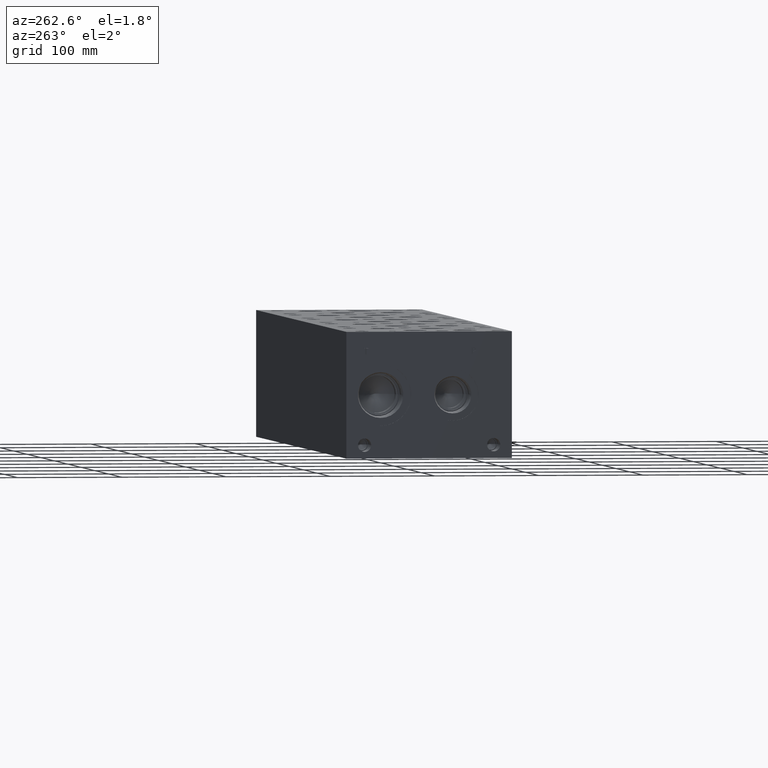
[diagram: clean part render]
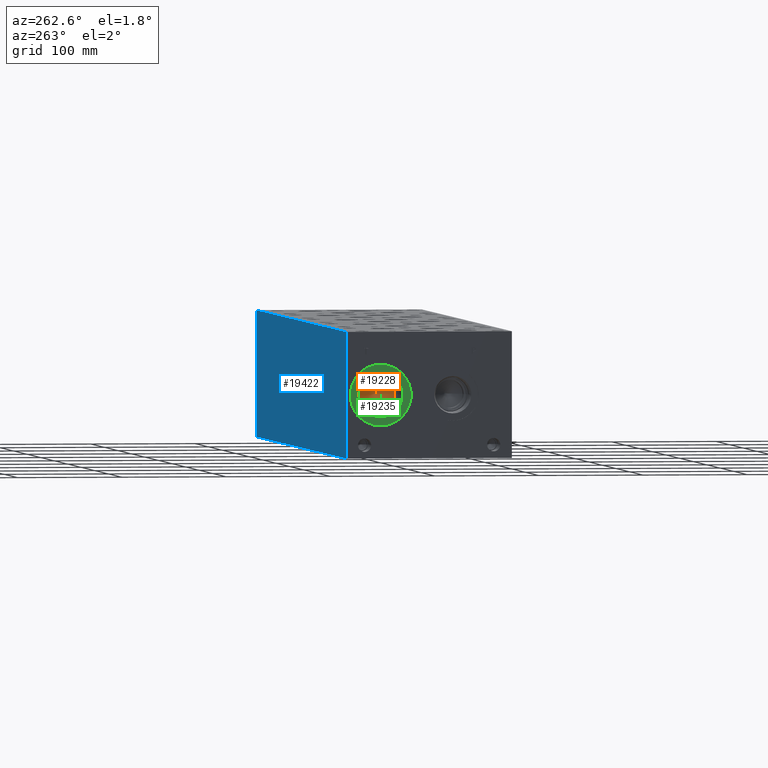
[diagram: same view with three faces highlighted in distinct colors, each labeled with its STEP entity id]
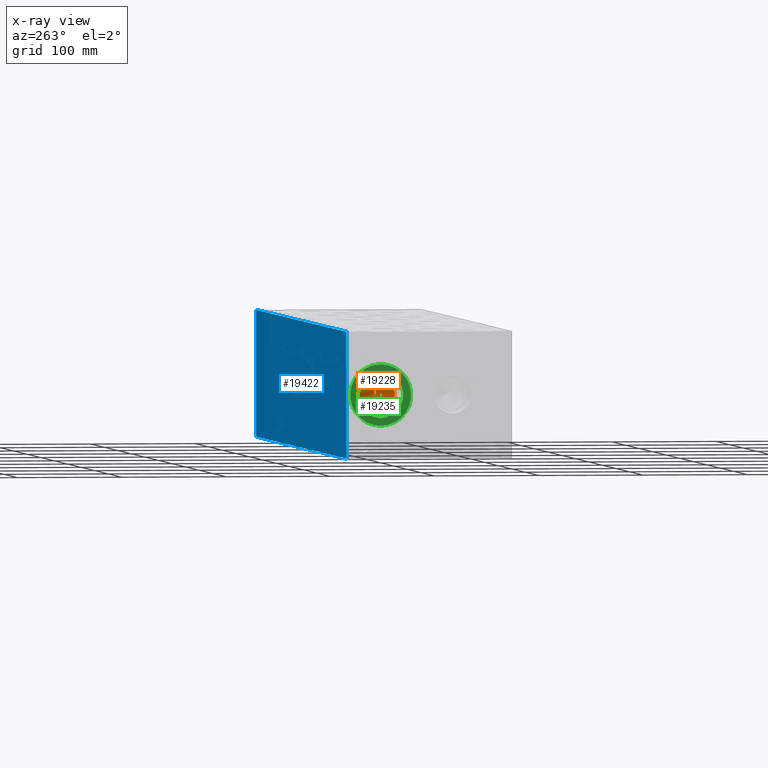
[diagram: x-ray of the same camera — body ghosted, the three highlighted faces saturated]
A machine part, auxiliary view with three faces highlighted in distinct colors.
The next image is the same camera in x-ray (body ghosted, the three faces saturated) — at least one of them is partly hidden behind the body in this view.
Their STEP definitions:

[orange] entity #19228 — the highlighted conical surface has half-angle 60 deg.
#295=CONICAL_SURFACE('',#20411,8.9281,1.0471975511966);
#919=CIRCLE('',#20412,17.8562);
#920=CIRCLE('',#20413,17.8562);
#2731=FACE_OUTER_BOUND('',#3875,.T.);
#3875=EDGE_LOOP('',(#16273,#16274,#16275,#16276));
#5592=LINE('',#32808,#7176);
#7176=VECTOR('',#24329,8.9281);
#8816=VERTEX_POINT('',#32804);
#8817=VERTEX_POINT('',#32805);
#8818=VERTEX_POINT('',#32807);
#11419=EDGE_CURVE('',#8816,#8817,#919,.T.);
#11420=EDGE_CURVE('',#8817,#8818,#5592,.T.);
#11421=EDGE_CURVE('',#8817,#8816,#920,.T.);
#16273=ORIENTED_EDGE('',*,*,#11419,.T.);
#16274=ORIENTED_EDGE('',*,*,#11420,.T.);
#16275=ORIENTED_EDGE('',*,*,#11420,.F.);
#16276=ORIENTED_EDGE('',*,*,#11421,.T.);
#19228=ADVANCED_FACE('',(#2731),#295,.F.);
#20411=AXIS2_PLACEMENT_3D('',#32803,#24325,#24326);
#20412=AXIS2_PLACEMENT_3D('',#32806,#24327,#24328);
#20413=AXIS2_PLACEMENT_3D('',#32809,#24330,#24331);
#24325=DIRECTION('center_axis',(-1.,0.,0.));
#24326=DIRECTION('ref_axis',(0.,1.,0.));
#24327=DIRECTION('center_axis',(-1.,0.,0.));
#24328=DIRECTION('ref_axis',(0.,1.,0.));
#24329=DIRECTION('',(0.5,0.866025403784439,-1.06057523872491E-16));
#24330=DIRECTION('center_axis',(-1.,0.,0.));
#24331=DIRECTION('ref_axis',(0.,1.,0.));
#32803=CARTESIAN_POINT('Origin',(40.0440309383519,125.8316,60.325));
#32804=CARTESIAN_POINT('',(34.88939,143.6878,60.325));
#32805=CARTESIAN_POINT('',(34.88939,107.9754,60.325));
#32806=CARTESIAN_POINT('Origin',(34.88939,125.8316,60.325));
#32807=CARTESIAN_POINT('',(45.1986718767038,125.8316,60.325));
#32808=CARTESIAN_POINT('',(40.0440309383519,116.9035,60.325));
#32809=CARTESIAN_POINT('Origin',(34.88939,125.8316,60.325));

[blue] entity #19422 — the highlighted planar face has unit normal (0, 1, 0).
#2925=FACE_OUTER_BOUND('',#4101,.T.);
#4101=EDGE_LOOP('',(#17186,#17187,#17188,#17189));
#5322=LINE('',#31417,#6906);
#5382=LINE('',#31690,#6966);
#5753=LINE('',#33925,#7337);
#5754=LINE('',#33926,#7338);
#6906=VECTOR('',#22909,10.);
#6966=VECTOR('',#23023,10.);
#7337=VECTOR('',#25580,10.);
#7338=VECTOR('',#25581,10.);
#8399=VERTEX_POINT('',#31414);
#8400=VERTEX_POINT('',#31416);
#8457=VERTEX_POINT('',#31686);
#8458=VERTEX_POINT('',#31688);
#10807=EDGE_CURVE('',#8399,#8400,#5322,.T.);
#10891=EDGE_CURVE('',#8457,#8458,#5382,.T.);
#11932=EDGE_CURVE('',#8399,#8457,#5753,.T.);
#11933=EDGE_CURVE('',#8400,#8458,#5754,.T.);
#17186=ORIENTED_EDGE('',*,*,#11932,.T.);
#17187=ORIENTED_EDGE('',*,*,#10891,.T.);
#17188=ORIENTED_EDGE('',*,*,#11933,.F.);
#17189=ORIENTED_EDGE('',*,*,#10807,.F.);
#17810=PLANE('',#20957);
#19422=ADVANCED_FACE('',(#2925),#17810,.T.);
#20957=AXIS2_PLACEMENT_3D('',#33924,#25578,#25579);
#22909=DIRECTION('',(0.,0.,1.));
#23023=DIRECTION('',(0.,0.,1.));
#25578=DIRECTION('center_axis',(0.,1.,0.));
#25579=DIRECTION('ref_axis',(-1.,0.,0.));
#25580=DIRECTION('',(-1.,0.,0.));
#25581=DIRECTION('',(-1.,0.,0.));
#31414=CARTESIAN_POINT('',(666.75,158.75,0.));
#31416=CARTESIAN_POINT('',(666.75,158.75,120.65));
#31417=CARTESIAN_POINT('',(666.75,158.75,0.));
#31686=CARTESIAN_POINT('',(0.,158.75,0.));
#31688=CARTESIAN_POINT('',(0.,158.75,120.65));
#31690=CARTESIAN_POINT('',(0.,158.75,0.));
#33924=CARTESIAN_POINT('Origin',(666.75,158.75,0.));
#33925=CARTESIAN_POINT('',(666.75,158.75,0.));
#33926=CARTESIAN_POINT('',(666.75,158.75,120.65));

[green] entity #19235 — the highlighted planar face has unit normal (1, 0, 0).
#929=CIRCLE('',#20428,29.2862);
#930=CIRCLE('',#20429,29.2862);
#931=CIRCLE('',#20431,21.7551);
#932=CIRCLE('',#20432,21.7551);
#1806=FACE_BOUND('',#3884,.T.);
#2738=FACE_OUTER_BOUND('',#3883,.T.);
#3883=EDGE_LOOP('',(#16307,#16308));
#3884=EDGE_LOOP('',(#16309,#16310));
#8827=VERTEX_POINT('',#32836);
#8828=VERTEX_POINT('',#32838);
#8829=VERTEX_POINT('',#32842);
#8830=VERTEX_POINT('',#32843);
#11435=EDGE_CURVE('',#8827,#8828,#929,.T.);
#11436=EDGE_CURVE('',#8828,#8827,#930,.T.);
#11437=EDGE_CURVE('',#8829,#8830,#931,.T.);
#11438=EDGE_CURVE('',#8830,#8829,#932,.T.);
#16307=ORIENTED_EDGE('',*,*,#11436,.F.);
#16308=ORIENTED_EDGE('',*,*,#11435,.F.);
#16309=ORIENTED_EDGE('',*,*,#11437,.T.);
#16310=ORIENTED_EDGE('',*,*,#11438,.T.);
#17778=PLANE('',#20430);
#19235=ADVANCED_FACE('',(#2738,#1806),#17778,.F.);
#20428=AXIS2_PLACEMENT_3D('',#32839,#24365,#24366);
#20429=AXIS2_PLACEMENT_3D('',#32840,#24367,#24368);
#20430=AXIS2_PLACEMENT_3D('',#32841,#24369,#24370);
#20431=AXIS2_PLACEMENT_3D('',#32844,#24371,#24372);
#20432=AXIS2_PLACEMENT_3D('',#32845,#24373,#24374);
#24365=DIRECTION('center_axis',(1.,0.,0.));
#24366=DIRECTION('ref_axis',(0.,0.,-1.));
#24367=DIRECTION('center_axis',(1.,0.,0.));
#24368=DIRECTION('ref_axis',(0.,0.,-1.));
#24369=DIRECTION('center_axis',(1.,0.,0.));
#24370=DIRECTION('ref_axis',(0.,0.,-1.));
#24371=DIRECTION('center_axis',(1.,0.,0.));
#24372=DIRECTION('ref_axis',(0.,0.,-1.));
#24373=DIRECTION('center_axis',(1.,0.,0.));
#24374=DIRECTION('ref_axis',(0.,0.,-1.));
#32836=CARTESIAN_POINT('',(0.7874,125.8316,31.0388));
#32838=CARTESIAN_POINT('',(0.7874,125.8316,89.6112));
#32839=CARTESIAN_POINT('Origin',(0.7874,125.8316,60.325));
#32840=CARTESIAN_POINT('Origin',(0.7874,125.8316,60.325));
#32841=CARTESIAN_POINT('Origin',(0.7874,125.8316,82.0801));
#32842=CARTESIAN_POINT('',(0.7874,125.8316,82.0801));
#32843=CARTESIAN_POINT('',(0.7874,125.8316,38.5699));
#32844=CARTESIAN_POINT('Origin',(0.7874,125.8316,60.325));
#32845=CARTESIAN_POINT('Origin',(0.7874,125.8316,60.325));